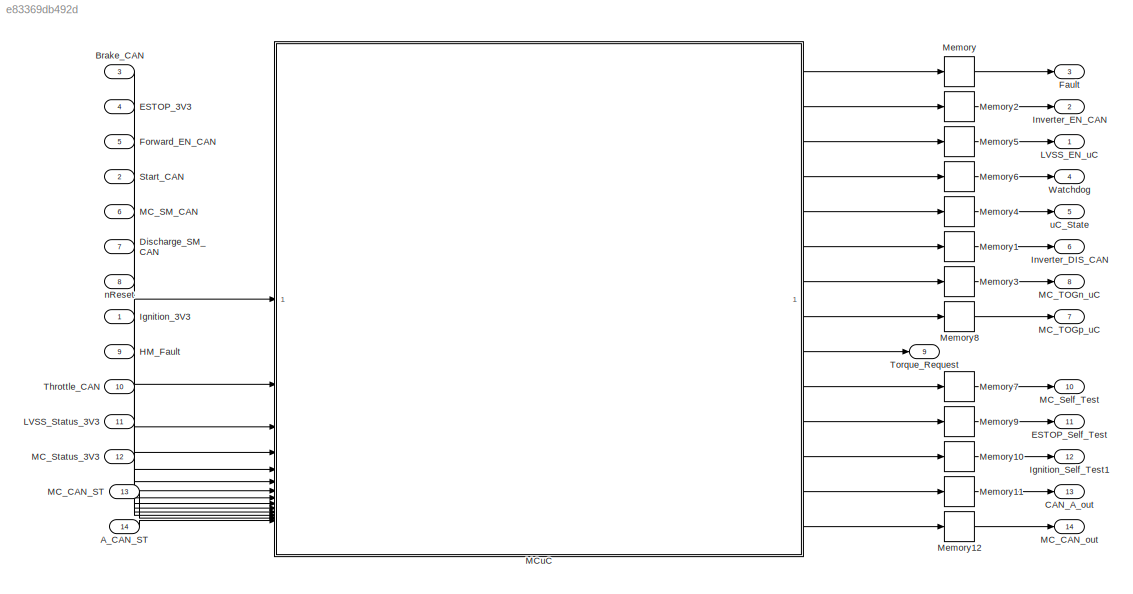
MODEL slx_e83369db492d
KIND model
CONFIG AbsTol = auto
CONFIG EnableMultiTasking = off
CONFIG FixedStep = auto
CONFIG MaxStep = auto
CONFIG MinStep = auto
CONFIG RelTol = 1e-3
CONFIG SampleTimeConstraint = Unconstrained
CONFIG SolverName = FixedStepAuto
CONFIG StartTime = 0.0
CONFIG StopTime = 10.0
BLOCK [Inport] A_CAN_ST
  NameLocation = left
  OutDataTypeStr = boolean
  Port = 14
BLOCK [Inport] Brake_CAN
  NameLocation = left
  OutDataTypeStr = boolean
  Port = 3
BLOCK [Outport] CAN_A_out
  OutDataTypeStr = boolean
  Port = 13
BLOCK [Inport] Discharge_SM_CAN
  NameLocation = left
  OutDataTypeStr = uint8
  Port = 7
BLOCK [Inport] ESTOP_3V3
  NameLocation = left
  OutDataTypeStr = boolean
  Port = 4
BLOCK [Outport] ESTOP_Self_Test
  NameLocation = right
  OutDataTypeStr = boolean
  Port = 11
BLOCK [Outport] Fault
  NameLocation = right
  OutDataTypeStr = boolean
  Port = 3
BLOCK [Inport] Forward_EN_CAN
  NameLocation = left
  OutDataTypeStr = boolean
  Port = 5
BLOCK [Inport] HM_Fault
  NameLocation = left
  OutDataTypeStr = boolean
  Port = 9
BLOCK [Inport] Ignition_3V3
  NameLocation = left
  OutDataTypeStr = boolean
BLOCK [Outport] Ignition_Self_Test1
  NameLocation = right
  OutDataTypeStr = boolean
  Port = 12
BLOCK [Outport] Inverter_DIS_CAN
  NameLocation = right
  OutDataTypeStr = boolean
  Port = 6
BLOCK [Outport] Inverter_EN_CAN
  NameLocation = right
  OutDataTypeStr = boolean
  Port = 2
BLOCK [Outport] LVSS_EN_uC
  NameLocation = right
  OutDataTypeStr = boolean
BLOCK [Inport] LVSS_Status_3V3
  NameLocation = left
  OutDataTypeStr = boolean
  Port = 11
BLOCK [Inport] MC_CAN_ST
  NameLocation = left
  OutDataTypeStr = boolean
  Port = 13
BLOCK [Outport] MC_CAN_out
  OutDataTypeStr = boolean
  Port = 14
BLOCK [Inport] MC_SM_CAN
  NameLocation = left
  OutDataTypeStr = uint8
  Port = 6
BLOCK [Outport] MC_Self_Test
  NameLocation = right
  OutDataTypeStr = boolean
  Port = 10
BLOCK [Inport] MC_Status_3V3
  NameLocation = left
  OutDataTypeStr = boolean
  Port = 12
BLOCK [Outport] MC_TOGn_uC
  NameLocation = right
  OutDataTypeStr = boolean
  Port = 8
BLOCK [Outport] MC_TOGp_uC
  NameLocation = right
  OutDataTypeStr = boolean
  Port = 7
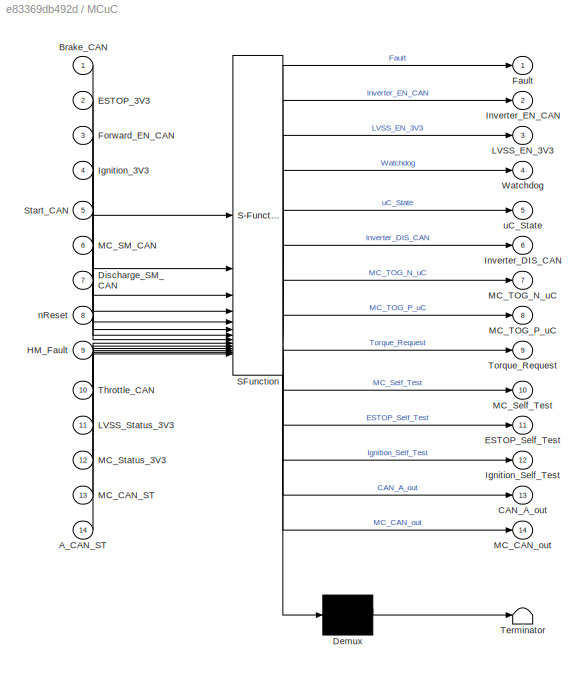
BLOCK [SubSystem] MCuC
  ErrorFcn = Stateflow.Translate.translate
  PermitHierarchicalResolution = ExplicitOnly
  PortSchema = {"entries":[{"content":{"sides":[{"content":{"connectorIds":["In1","In2","In3","In5","In6","In7","In8","In4","In9","In10","In11","In12","In13","In14"]},"type":"ConnectorPlacement.EquallySpacedRectSide","uuid":"d1510c73-f1c7-4e03-bb6c-bda7856f993e"},{"content":{"connectorIds":["Out1","Out2","Out3","Out4","Out5","Out6","Out7","Out8","Out9","Out10","Out11","Out12","Out13","Out14"],"side":"RIGHT"},"ty...<+401ch>
  SFBlockType = Chart
  TreatAsAtomicUnit = on
BLOCK [Demux] MCuC/ Demux 
  Outputs = 1
BLOCK [S-Function] MCuC/ SFunction 
  EnableBusSupport = on
  FunctionName = sf_sfun
  PortCounts = [14 15]
  SFcnIsStateOwnerBlock = off
  SFunctionDeploymentMode = off
  Tag = Stateflow S-Function 2
BLOCK [Terminator] MCuC/ Terminator 
BLOCK [Inport] MCuC/A_CAN_ST
  Port = 14
BLOCK [Inport] MCuC/Brake_CAN
BLOCK [Outport] MCuC/CAN_A_out
  Port = 13
BLOCK [Inport] MCuC/Discharge_SM_CAN
  Port = 7
BLOCK [Inport] MCuC/ESTOP_3V3
  Port = 2
BLOCK [Outport] MCuC/ESTOP_Self_Test
  Port = 11
BLOCK [Outport] MCuC/Fault
BLOCK [Inport] MCuC/Forward_EN_CAN
  Port = 3
BLOCK [Inport] MCuC/HM_Fault
  Port = 9
BLOCK [Inport] MCuC/Ignition_3V3
  Port = 4
BLOCK [Outport] MCuC/Ignition_Self_Test
  Port = 12
BLOCK [Outport] MCuC/Inverter_DIS_CAN
  Port = 6
BLOCK [Outport] MCuC/Inverter_EN_CAN
  Port = 2
BLOCK [Outport] MCuC/LVSS_EN_3V3
  Port = 3
BLOCK [Inport] MCuC/LVSS_Status_3V3
  Port = 11
BLOCK [Inport] MCuC/MC_CAN_ST
  Port = 13
BLOCK [Outport] MCuC/MC_CAN_out
  Port = 14
BLOCK [Inport] MCuC/MC_SM_CAN
  Port = 6
BLOCK [Outport] MCuC/MC_Self_Test
  Port = 10
BLOCK [Inport] MCuC/MC_Status_3V3
  Port = 12
BLOCK [Outport] MCuC/MC_TOG_N_uC
  Port = 7
BLOCK [Outport] MCuC/MC_TOG_P_uC
  Port = 8
BLOCK [Inport] MCuC/Start_CAN
  Port = 5
BLOCK [Inport] MCuC/Throttle_CAN
  Port = 10
BLOCK [Outport] MCuC/Torque_Request
  Port = 9
BLOCK [Outport] MCuC/Watchdog
  Port = 4
BLOCK [Inport] MCuC/nReset
  Port = 8
BLOCK [Outport] MCuC/uC_State
  Port = 5
BLOCK [Memory] Memory
BLOCK [Memory] Memory1
BLOCK [Memory] Memory10
BLOCK [Memory] Memory11
BLOCK [Memory] Memory12
BLOCK [Memory] Memory2
BLOCK [Memory] Memory3
BLOCK [Memory] Memory4
BLOCK [Memory] Memory5
BLOCK [Memory] Memory6
BLOCK [Memory] Memory7
BLOCK [Memory] Memory8
BLOCK [Memory] Memory9
BLOCK [Inport] Start_CAN
  NameLocation = left
  OutDataTypeStr = boolean
  Port = 2
BLOCK [Inport] Throttle_CAN
  NameLocation = left
  OutDataTypeStr = uint16
  Port = 10
BLOCK [Outport] Torque_Request
  NameLocation = right
  OutDataTypeStr = uint16
  Port = 9
BLOCK [Outport] Watchdog
  NameLocation = right
  OutDataTypeStr = boolean
  Port = 4
BLOCK [Inport] nReset
  NameLocation = left
  OutDataTypeStr = boolean
  Port = 8
BLOCK [Outport] uC_State
  NameLocation = right
  OutDataTypeStr = uint8
  Port = 5
LINE A_CAN_ST:1 -> MCuC:14
LINE Brake_CAN:1 -> MCuC:1
LINE Discharge_SM_CAN:1 -> MCuC:7
LINE ESTOP_3V3:1 -> MCuC:2
LINE Forward_EN_CAN:1 -> MCuC:3
LINE HM_Fault:1 -> MCuC:9
LINE Ignition_3V3:1 -> MCuC:4
LINE LVSS_Status_3V3:1 -> MCuC:11
LINE MC_CAN_ST:1 -> MCuC:13
LINE MC_SM_CAN:1 -> MCuC:6
LINE MC_Status_3V3:1 -> MCuC:12
LINE MCuC:1 -> Memory:1
LINE MCuC:10 -> Memory7:1
LINE MCuC:11 -> Memory9:1
LINE MCuC:12 -> Memory10:1
LINE MCuC:13 -> Memory11:1
LINE MCuC:14 -> Memory12:1
LINE MCuC:2 -> Memory2:1
LINE MCuC:3 -> Memory5:1
LINE MCuC:4 -> Memory6:1
LINE MCuC:5 -> Memory4:1
LINE MCuC:6 -> Memory1:1
LINE MCuC:7 -> Memory3:1
LINE MCuC:8 -> Memory8:1
LINE MCuC:9 -> Torque_Request:1
LINE Memory10:1 -> Ignition_Self_Test1:1
LINE Memory11:1 -> CAN_A_out:1
LINE Memory12:1 -> MC_CAN_out:1
LINE Memory1:1 -> Inverter_DIS_CAN:1
LINE Memory2:1 -> Inverter_EN_CAN:1
LINE Memory3:1 -> MC_TOGn_uC:1
LINE Memory4:1 -> uC_State:1
LINE Memory5:1 -> LVSS_EN_uC:1
LINE Memory6:1 -> Watchdog:1
LINE Memory7:1 -> MC_Self_Test:1
LINE Memory8:1 -> MC_TOGp_uC:1
LINE Memory9:1 -> ESTOP_Self_Test:1
LINE Memory:1 -> Fault:1
LINE Start_CAN:1 -> MCuC:5
LINE Throttle_CAN:1 -> MCuC:10
LINE nReset:1 -> MCuC:8
CHART MCuC states=35 transitions=45
  STATE_LABEL 'MCuC'
  STATE_LABEL 'MCuC_Logic'
  STATE_LABEL 'ESTOP\nentry:\nuC_State = 7;\nLVSS_EN_3V3 = false;\nESTOP_activated = false;\n'
  STATE_LABEL 'MC_Off\nentry:\nLVSS_EN_3V3 = false;\nuC_State = 0;\nuncharged = true;\nInverter_EN_CAN = false;\nMC_Self_Test = false;'
  STATE_LABEL 'LVSS_MC_Shutdown\nentry:\nuC_State = 9;\nLVSS_EN_3V3 = false;\nInverter_DIS_CAN = false;\nMC_TOG_P_uC = false;\nMC_TOG_N_uC = true;\nexit:\nMC_TOG_P_uC = false;\nMC_TOG_N_uC = false;\n'
  STATE_LABEL 'MC_Discharging\nentry:\nuC_State = 5;\n'
  STATE_LABEL 'Fault_Ignit_H'
  STATE_LABEL 'Fault\nentry:\nuC_State = 6;\nFault_Activated = false;\nFault = true;\nexit:\nFault = false;\n'
  STATE_LABEL 'LVSS_MC_Startup\nentry:\nuncharged = false;\nuC_State = 8;\nLVSS_EN_3V3 = true;\nMC_TOG_P_uC = true;\nMC_TOG_N_uC = false;\nexit:\nMC_TOG_P_uC = false;\nMC_TOG_N_uC = false;\n'
  STATE_LABEL 'Setup\nentry:\nuC_State = 10;\nMC_Self_Test = true;'
  STATE_LABEL 'MC_ST\n'
  STATE_LABEL 'MC_ON\nentry:\nMC_TOG_P_uC = true;\nMC_TOG_N_uC = false;'
  STATE_LABEL 'MC_OFF\nentry:\nMC_TOG_P_uC = false;\nMC_TOG_N_uC = true;'
  STATE_LABEL 'MC_Fails\nentry:\nuC_State = 15;\nMC_TOG_P_uC = false;\nMC_TOG_N_uC = false;'
  STATE_LABEL '[MC_Status_3V3 == true]'
  STATE_LABEL '[MC_Status_3V3 == false && after(2,sec)]'
  STATE_LABEL '[MC_Status_3V3 == true && after(2,sec)]'
  STATE_LABEL 'Ignition_ST'
  STATE_LABEL 'Ignition_Low\nentry:\nIgnition_Self_Test = true;'
  STATE_LABEL 'Ignition_High\nentry:\nIgnition_Self_Test = false;'
  STATE_LABEL 'Ignition_Fails\nentry:\nuC_State = 14;'
  STATE_LABEL '[Ignition_3V3 == false]'
  STATE_LABEL '[Ignition_3V3 == true]'
  STATE_LABEL '[Ignition_3V3 == false]'
  STATE_LABEL 'ESTOP_ST'
  STATE_LABEL 'ESTOP_Low\nentry:\nESTOP_Self_Test = true;'
  STATE_LABEL 'ESTOP_High\nentry:\nESTOP_Self_Test = false;'
  STATE_LABEL 'ESTOP_Fails\nentry:\nuC_State = 13;'
  STATE_LABEL '[ESTOP_3V3 == false]'
  STATE_LABEL '[ESTOP_3V3 == true]'
  STATE_LABEL '[ESTOP_3V3 == false]'
  STATE_LABEL 'MC_CAN_ST'
  STATE_LABEL 'MC_Transmit\nentry:\nMC_CAN_out = true;'
  STATE_LABEL 'MC_CAN_fails\nentry:\nuC_State = 12;'
  STATE_LABEL '[MC_CAN_ST == false && after(30,sec)]'
  STATE_LABEL 'CAN_A_ST'
  STATE_LABEL 'A_Transmit\nentry:\nCAN_A_out = true;'
  STATE_LABEL 'A_CAN_fails\nentry:\nuC_State = 11;'
  STATE_LABEL '[A_CAN_ST ==false && after(30,sec)]'
  STATE_LABEL '[MC_Status_3V3 == false]'
CHART  states=0 transitions=0
